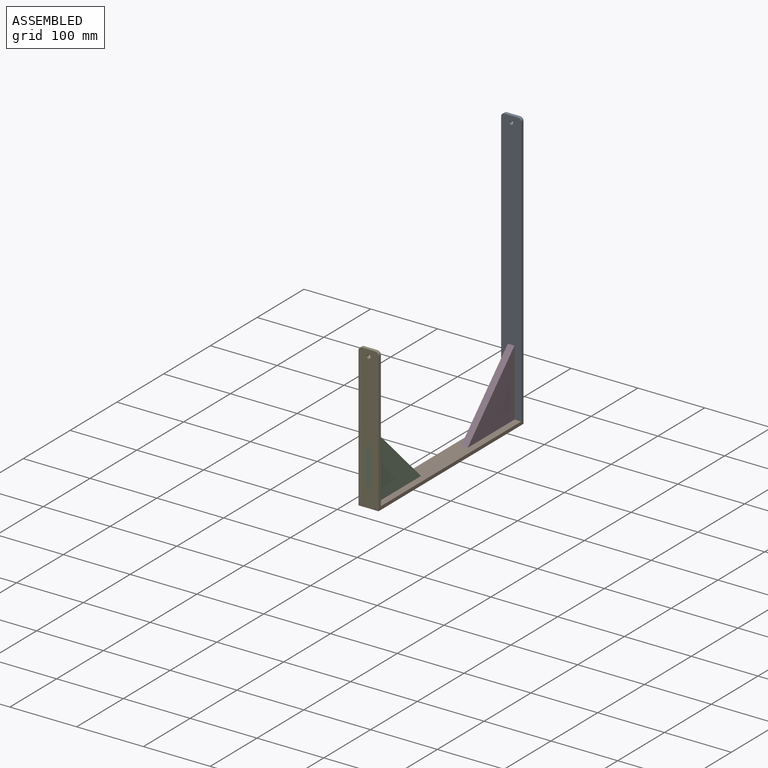
[diagram: assembled view]
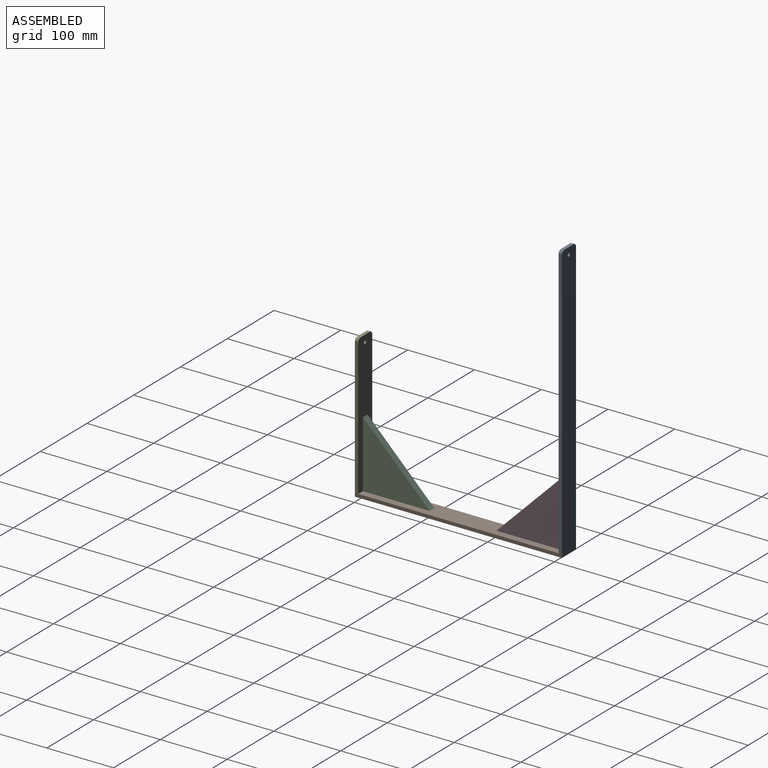
[diagram: assembled view, second angle]
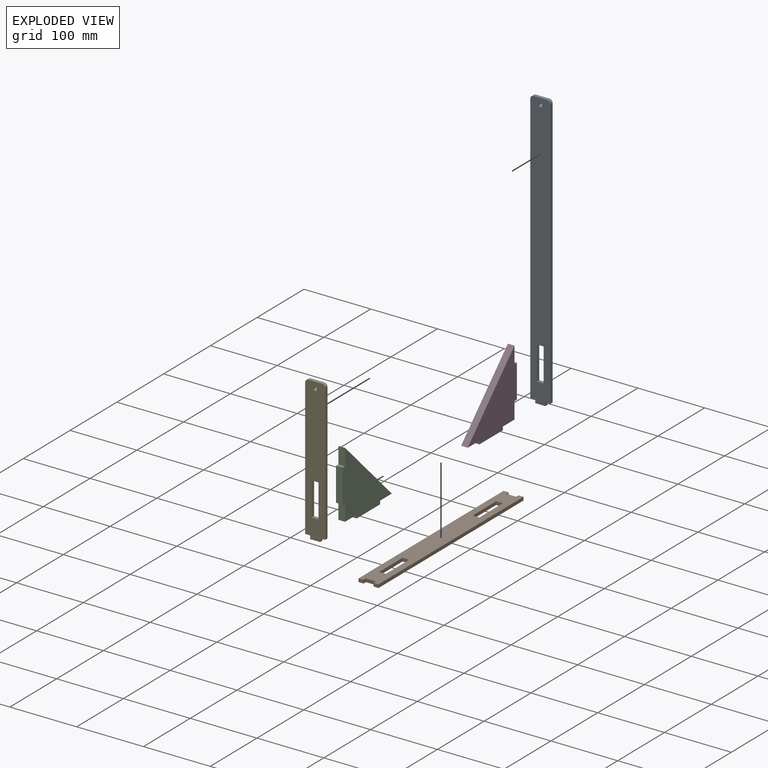
[diagram: exploded view]
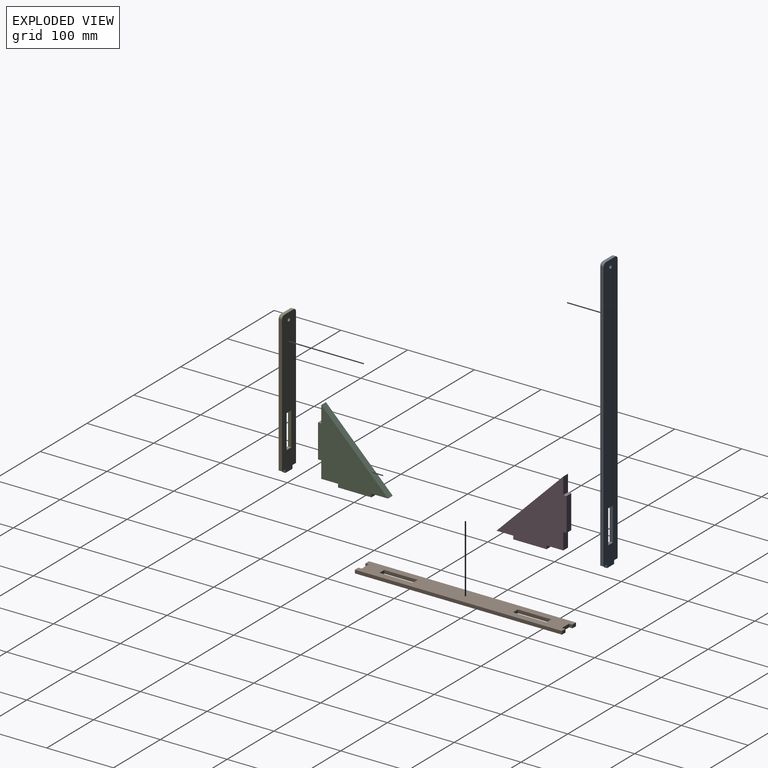
[diagram: exploded view, second angle]
ASSEMBLY  parts=5 mates=4
PART A: 17 faces, bbox 30x5x415 mm
  f0: plane 7.5x5mm, normal (0,0,-1), area 37.5mm2, adj f1,f7,f8,f9
  f1: plane 5x5mm, normal (-1,0,0), area 25mm2, adj f0,f2,f8,f9
  f2: plane 15x5mm, normal (0,0,-1), area 75mm2, adj f1,f3,f8,f9
  f3: plane 5x5mm, normal (1,0,0), area 25mm2, adj f2,f4,f8,f9
  f4: plane 7.5x5mm, normal (0,0,-1), area 37.5mm2, adj f3,f5,f8,f9
  f5: plane 405x5mm, normal (1,0,0), area 2025mm2, adj f4,f8,f9,f11
  f6: plane 20x5mm, normal (0,0,1), area 100mm2, adj f8,f9,f11,f12
  f7: plane 405x5mm, normal (-1,0,0), area 2025mm2, adj f0,f8,f9,f12
  f8: plane 415x30mm, normal (0,-1,0), area 11842.6mm2, adj f0,f1,f2,f3,f4,f5,f6,f7
  f9: plane 415x30mm, normal (0,1,0), area 11842.6mm2, adj f0,f1,f2,f3,f4,f5,f6,f7
  f10: cylinder r=2.62mm len=5.25mm, axis (0,-1,0), area 82.5mm2, adj f8,f9
  f11: cylinder r=5mm len=5mm, axis (0,-1,0), area 39.3mm2, adj f5,f6,f8,f9
  f12: cylinder r=5mm len=5mm, axis (0,1,0), area 39.3mm2, adj f6,f7,f8,f9
  f13: plane 50x5mm, normal (-1,0,0), area 250mm2, adj f8,f9,f14,f16
  f14: plane 10x5mm, normal (0,0,-1), area 50mm2, adj f8,f9,f13,f15
  f15: plane 50x5mm, normal (1,0,0), area 250mm2, adj f8,f9,f14,f16
  f16: plane 10x5mm, normal (0,0,1), area 50mm2, adj f8,f9,f13,f15
PART B: 22 faces, bbox 30x310x5 mm
  f0: plane 310x30mm, normal (0,0,1), area 8150mm2, adj f2,f3,f4,f5,f6,f7,f8,f9
  f1: plane 310x30mm, normal (0,0,-1), area 8150mm2, adj f2,f3,f4,f5,f6,f7,f8,f9
  f2: plane 310x5mm, normal (-1,0,0), area 1550mm2, adj f0,f1,f3,f13
  f3: plane 7.5x5mm, normal (0,-1,0), area 37.5mm2, adj f0,f1,f2,f4
  f4: plane 5x5mm, normal (1,0,0), area 25mm2, adj f0,f1,f3,f5
  f5: plane 15x5mm, normal (0,-1,0), area 75mm2, adj f0,f1,f4,f6
  f6: plane 5x5mm, normal (-1,0,0), area 25mm2, adj f0,f1,f5,f7
  f7: plane 7.5x5mm, normal (0,-1,0), area 37.5mm2, adj f0,f1,f6,f8
  f8: plane 310x5mm, normal (1,0,0), area 1550mm2, adj f0,f1,f7,f9
  f9: plane 7.5x5mm, normal (0,1,0), area 37.5mm2, adj f0,f1,f8,f10
  f10: plane 5x5mm, normal (-1,0,0), area 25mm2, adj f0,f1,f9,f11
  f11: plane 15x5mm, normal (0,1,0), area 75mm2, adj f0,f1,f10,f12
  f12: plane 5x5mm, normal (1,0,0), area 25mm2, adj f0,f1,f11,f13
  f13: plane 7.5x5mm, normal (0,1,0), area 37.5mm2, adj f0,f1,f2,f12
  f14: plane 10x5mm, normal (0,1,0), area 50mm2, adj f0,f1,f15,f17
  f15: plane 50x5mm, normal (-1,0,0), area 250mm2, adj f0,f1,f14,f16
  f16: plane 10x5mm, normal (0,-1,0), area 50mm2, adj f0,f1,f15,f17
  f17: plane 50x5mm, normal (1,0,0), area 250mm2, adj f0,f1,f14,f16
  f18: plane 10x5mm, normal (0,1,0), area 50mm2, adj f0,f1,f19,f21
  f19: plane 50x5mm, normal (-1,0,0), area 250mm2, adj f0,f1,f18,f20
  f20: plane 10x5mm, normal (0,-1,0), area 50mm2, adj f0,f1,f19,f21
  f21: plane 50x5mm, normal (1,0,0), area 250mm2, adj f0,f1,f18,f20
PART C: 13 faces, bbox 10x105x105 mm
  f0: plane 10x5mm, normal (0,0,-1), area 50mm2, adj f1,f10,f11,f12
  f1: plane 50x10mm, normal (0,1,0), area 500mm2, adj f0,f2,f11,f12
  f2: plane 10x5mm, normal (0,0,1), area 50mm2, adj f1,f3,f11,f12
  f3: plane 25x10mm, normal (0,1,0), area 250mm2, adj f2,f4,f11,f12
  f4: plane 100x100mm, normal (0,-0.71,0.71), area 1414.2mm2, adj f3,f5,f11,f12
  f5: plane 25x10mm, normal (0,0,-1), area 250mm2, adj f4,f6,f11,f12
  f6: plane 10x5mm, normal (0,-1,0), area 50mm2, adj f5,f7,f11,f12
  f7: plane 50x10mm, normal (0,0,-1), area 500mm2, adj f6,f8,f11,f12
  f8: plane 10x5mm, normal (0,1,0), area 50mm2, adj f7,f9,f11,f12
  f9: plane 25x10mm, normal (0,0,-1), area 250mm2, adj f8,f10,f11,f12
  f10: plane 25x10mm, normal (0,1,0), area 250mm2, adj f0,f9,f11,f12
  f11: plane 105x105mm, normal (1,0,0), area 5500mm2, adj f0,f1,f2,f3,f4,f5,f6,f7
  f12: plane 105x105mm, normal (-1,0,0), area 5500mm2, adj f0,f1,f2,f3,f4,f5,f6,f7
PART D: same geometry as C
PART E: 17 faces, bbox 30x5x215 mm
  f0: plane 7.5x5mm, normal (0,0,-1), area 37.5mm2, adj f1,f7,f8,f9
  f1: plane 5x5mm, normal (-1,0,0), area 25mm2, adj f0,f2,f8,f9
  f2: plane 15x5mm, normal (0,0,-1), area 75mm2, adj f1,f3,f8,f9
  f3: plane 5x5mm, normal (1,0,0), area 25mm2, adj f2,f4,f8,f9
  f4: plane 7.5x5mm, normal (0,0,-1), area 37.5mm2, adj f3,f5,f8,f9
  f5: plane 205x5mm, normal (1,0,0), area 1025mm2, adj f4,f8,f9,f11
  f6: plane 20x5mm, normal (0,0,1), area 100mm2, adj f8,f9,f11,f12
  f7: plane 205x5mm, normal (-1,0,0), area 1025mm2, adj f0,f8,f9,f12
  f8: plane 215x30mm, normal (0,-1,0), area 5842.6mm2, adj f0,f1,f2,f3,f4,f5,f6,f7
  f9: plane 215x30mm, normal (0,1,0), area 5842.6mm2, adj f0,f1,f2,f3,f4,f5,f6,f7
  f10: cylinder r=2.62mm len=5.25mm, axis (0,-1,0), area 82.5mm2, adj f8,f9
  f11: cylinder r=5mm len=5mm, axis (0,-1,0), area 39.3mm2, adj f5,f6,f8,f9
  f12: cylinder r=5mm len=5mm, axis (0,1,0), area 39.3mm2, adj f6,f7,f8,f9
  f13: plane 50x5mm, normal (-1,0,0), area 250mm2, adj f8,f9,f14,f16
  f14: plane 10x5mm, normal (0,0,-1), area 50mm2, adj f8,f9,f13,f15
  f15: plane 50x5mm, normal (1,0,0), area 250mm2, adj f8,f9,f14,f16
  f16: plane 10x5mm, normal (0,0,1), area 50mm2, adj f8,f9,f13,f15
PLACE A t=(-33.09,136.08,211.53)mm
PLACE B t=(-33.09,-16.42,4.03)mm
PLACE C rot(axis=(-1,0,0),90deg) t=(-38.09,-166.42,106.53)mm
PLACE D t=(-38.09,33.58,6.53)mm
PLACE E t=(-33.09,-168.92,111.53)mm
MATE fastened C.f9 <-> E.f9  axis (0,-1,0) through (-33.09,-166.42,31.53)mm
MATE fastened A.f8 <-> B.f11  axis (0,-1,0) through (-33.09,133.58,1.53)mm
MATE fastened D.f10 <-> A.f8  axis (0,1,0) through (-33.09,133.58,31.53)mm
MATE fastened E.f9 <-> B.f5  axis (0,1,0) through (-33.09,-166.42,1.53)mm
